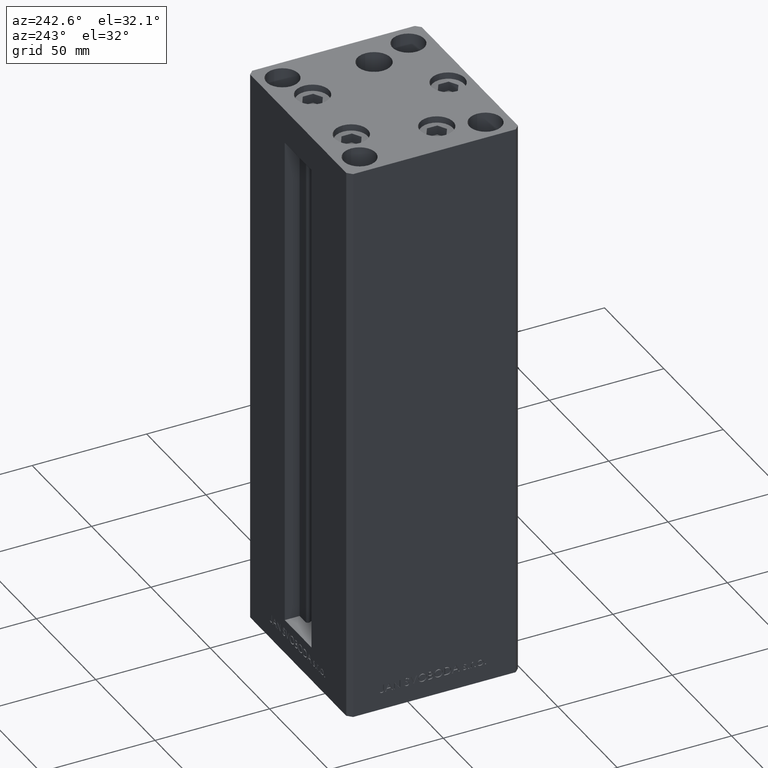
[diagram: clean part render]
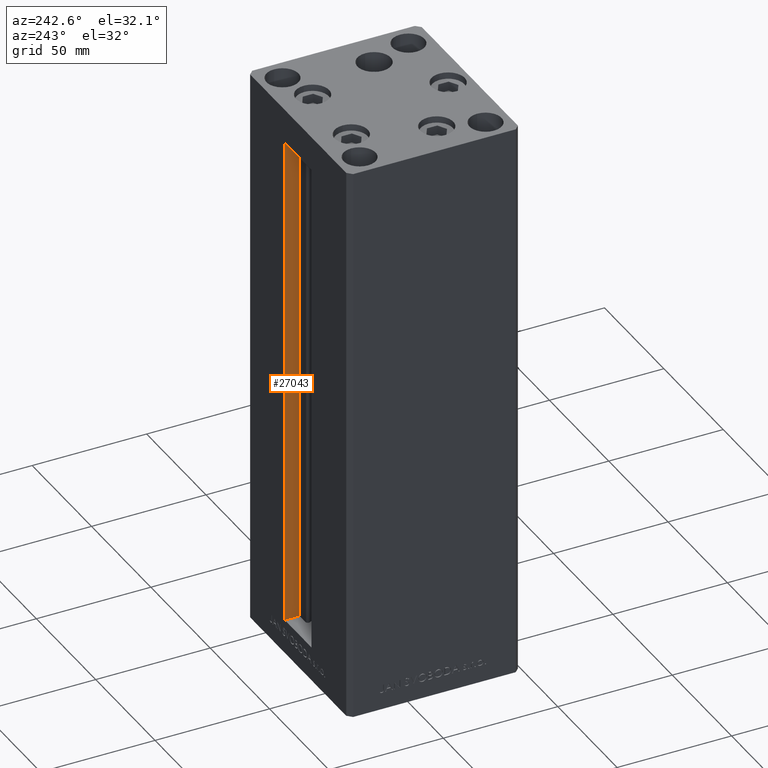
[diagram: same view with one face highlighted and labeled with its STEP entity id]
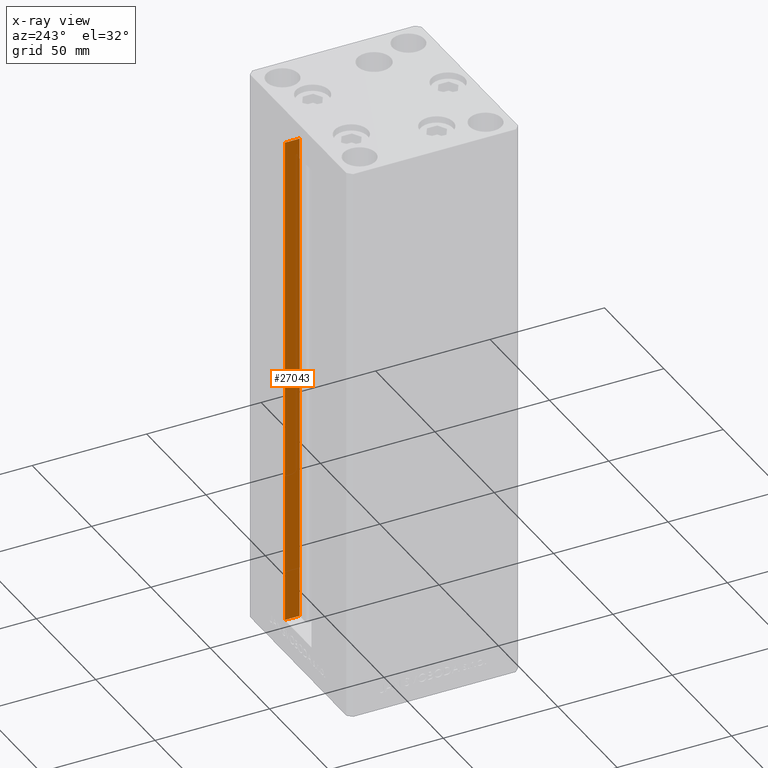
[diagram: x-ray of the same camera — body ghosted, the highlighted face saturated]
A machine part, auxiliary view. The second image highlights one B-rep face of the part: STEP entity #27043.
The next image is the same camera in x-ray: the body ghosted, the highlighted face saturated — about 0% of this face is hidden behind the body in this view.
In plain terms, the highlighted planar face has unit normal (1, 0, 0).
Its self-contained STEP definition (entity closure, byte-faithful):
#1117 = VECTOR ( 'NONE', #40670, 1000.000000000000000 ) ;
#1750 = EDGE_CURVE ( 'NONE', #15987, #21460, #45616, .T. ) ;
#4382 = LINE ( 'NONE', #45738, #4788 ) ;
#4788 = VECTOR ( 'NONE', #12037, 1000.000000000000000 ) ;
#7452 = VERTEX_POINT ( 'NONE', #22725 ) ;
#9407 = CARTESIAN_POINT ( 'NONE',  ( 11.25000000000000000, 30.99999999999999289, 0.000000000000000000 ) ) ;
#9447 = ORIENTED_EDGE ( 'NONE', *, *, #38124, .F. ) ;
#10455 = CARTESIAN_POINT ( 'NONE',  ( 11.25000000000000000, 37.50000000000000000, 0.000000000000000000 ) ) ;
#12037 = DIRECTION ( 'NONE',  ( -0.000000000000000000, -0.000000000000000000, 1.000000000000000000 ) ) ;
#12904 = CARTESIAN_POINT ( 'NONE',  ( 11.25000000000000000, 30.99999999999999289, 0.000000000000000000 ) ) ;
#14673 = ORIENTED_EDGE ( 'NONE', *, *, #25117, .F. ) ;
#15636 = DIRECTION ( 'NONE',  ( -0.000000000000000000, -1.000000000000000000, 0.000000000000000000 ) ) ;
#15987 = VERTEX_POINT ( 'NONE', #19095 ) ;
#16108 = VERTEX_POINT ( 'NONE', #9407 ) ;
#16120 = CARTESIAN_POINT ( 'NONE',  ( 11.25000000000000000, 0.000000000000000000, 218.5000000000000000 ) ) ;
#17354 = DIRECTION ( 'NONE',  ( 1.000000000000000000, -0.000000000000000000, 0.000000000000000000 ) ) ;
#19095 = CARTESIAN_POINT ( 'NONE',  ( 11.24999999999999289, 37.50000000000000000, 218.5000000000000000 ) ) ;
#21460 = VERTEX_POINT ( 'NONE', #37652 ) ;
#22084 = LINE ( 'NONE', #40667, #46640 ) ;
#22725 = CARTESIAN_POINT ( 'NONE',  ( 11.25000000000000000, 37.50000000000000000, 0.000000000000000000 ) ) ;
#25117 = EDGE_CURVE ( 'NONE', #16108, #7452, #22084, .T. ) ;
#26572 = ORIENTED_EDGE ( 'NONE', *, *, #1750, .F. ) ;
#27043 = ADVANCED_FACE ( 'NONE', ( #35927 ), #42901, .F. ) ;
#29943 = EDGE_CURVE ( 'NONE', #16108, #21460, #4382, .T. ) ;
#35927 = FACE_OUTER_BOUND ( 'NONE', #43037, .T. ) ;
#37243 = AXIS2_PLACEMENT_3D ( 'NONE', #12904, #17354, #47331 ) ;
#37652 = CARTESIAN_POINT ( 'NONE',  ( 11.25000000000000000, 30.99999999999999289, 218.5000000000000000 ) ) ;
#38124 = EDGE_CURVE ( 'NONE', #7452, #15987, #48348, .T. ) ;
#40667 = CARTESIAN_POINT ( 'NONE',  ( 11.25000000000000000, 30.99999999999999289, 0.000000000000000000 ) ) ;
#40670 = DIRECTION ( 'NONE',  ( -0.000000000000000000, -0.000000000000000000, 1.000000000000000000 ) ) ;
#42235 = VECTOR ( 'NONE', #15636, 1000.000000000000000 ) ;
#42742 = ORIENTED_EDGE ( 'NONE', *, *, #29943, .T. ) ;
#42901 = PLANE ( 'NONE',  #37243 ) ;
#43037 = EDGE_LOOP ( 'NONE', ( #9447, #14673, #42742, #26572 ) ) ;
#44143 = DIRECTION ( 'NONE',  ( 0.000000000000000000, 1.000000000000000000, 0.000000000000000000 ) ) ;
#45616 = LINE ( 'NONE', #16120, #42235 ) ;
#45738 = CARTESIAN_POINT ( 'NONE',  ( 11.25000000000000000, 30.99999999999999289, 0.000000000000000000 ) ) ;
#46640 = VECTOR ( 'NONE', #44143, 1000.000000000000000 ) ;
#47331 = DIRECTION ( 'NONE',  ( 0.000000000000000000, 0.000000000000000000, -1.000000000000000000 ) ) ;
#48348 = LINE ( 'NONE', #10455, #1117 ) ;